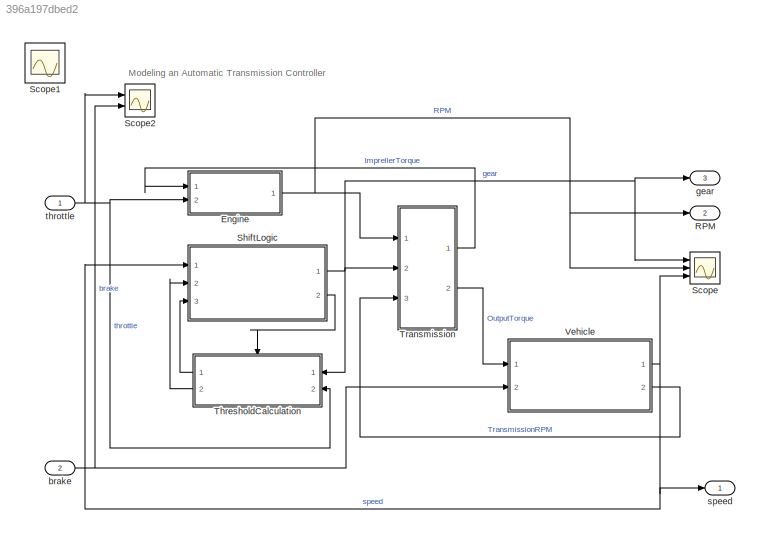
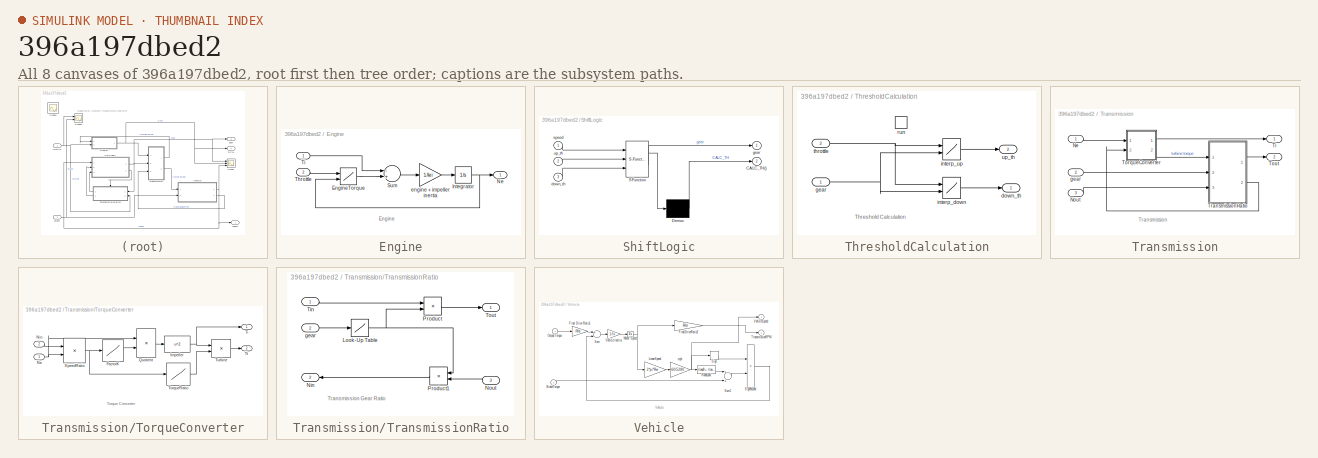
[diagram: thumbnail index - all 8 canvases of the model, root first then tree order]
MODEL slx_396a197dbed2
KIND model
CONFIG AbsTol = 1e-6
CONFIG EnableMultiTasking = off
CONFIG FixedStep = .01
CONFIG MaxStep = auto
CONFIG MinStep = auto
CONFIG RelTol = 1e-3
CONFIG SampleTimeConstraint = Unconstrained
CONFIG Solver = ode5
CONFIG SolverName = ode5
CONFIG StartTime = 0.0
CONFIG StopTime = tspan(end)
WORKSPACE source: MATLAB code (in-file)
WORKSPACE code: load sldemo_autotrans_data; %load initial conditions and other necessary data
BLOCK [SubSystem] Engine
  Ports = [2, 1]
  RequestExecContextInheritance = off
  Variant = off
BLOCK [Lookup2D] Engine/EngineTorque
  ColumnIndex = nevec
  RowIndex = thvec
  SaturateOnIntegerOverflow = off
  Table = emap
BLOCK [Integrator] Engine/Integrator
  InitialCondition = 1000
  LimitOutput = on
  LowerSaturationLimit = 600
  Ports = [1, 1]
  UpperSaturationLimit = 6000
  ZeroCross = off
BLOCK [Outport] Engine/Ne
  IconDisplay = Port number
  InitialOutput = 0
BLOCK [Sum] Engine/Sum
  Inputs = -+
  Ports = [2, 1]
BLOCK [Inport] Engine/Throttle
  IconDisplay = Port number
  Port = 2
BLOCK [Inport] Engine/Ti
  IconDisplay = Port number
BLOCK [Gain] Engine/engine + impeller inertia
  Gain = 1/Iei
BLOCK [Outport] RPM
  IconDisplay = Port number
  Port = 2
BLOCK [Scope] Scope
  NumInputPorts = 3
  Ports = [3]
  ScopeSpecificationString = C++SS(StrPVP('Location','[1120, 49, 1435, 898]'),StrPVP('Open','off'),StrPVP('TickLabels','on'),MxPVP('AxesTitles',53,'struct(''axes1'',''%<SignalLabel>'',''axes2'',''%<SignalLabel>'',''axes3'',''%<SignalLabel>'')'),StrPVP('YMin','-5~1000~0'),StrPVP('YMax','5~4500~120'),StrPVP('DataFormat','StructureWithTime'),StrPVP('LimitDataPoints','off'),StrPVP('BlockParamSampleTime','0'),StrPVP('Decimation','...<+42ch>
BLOCK [Scope] Scope1
  IOType = viewer
  NumInputPorts = 1
  Ports = []
  ScopeSpecificationString = C++SS(StrPVP('Location','[74, 539, 357, 735]'),StrPVP('Open','off'),MxPVP('AxesTitles',53,'struct(''axes1'',''%<SignalLabel>'')'),StrPVP('TimeRange','30'),StrPVP('YMin','1000'),StrPVP('YMax','5000'),StrPVP('MaxDataPoints','7500'),StrPVP('LimitDataPoints','on'),StrPVP('DataFormat','Array'),StrPVP('Decimation','1'),StrPVP('BlockParamSampleInput','off'))
BLOCK [Scope] Scope2
  NumInputPorts = 2
  Ports = [2]
  ScopeSpecificationString = C++SS(StrPVP('Location','[898, 979, 1378, 1469]'),StrPVP('Open','off'),StrPVP('TickLabels','on'),MxPVP('AxesTitles',53,'struct(''axes1'',''%<SignalLabel>'',''axes2'',''%<SignalLabel>'')'),MxPVP('ScopeGraphics',56,'struct(''FigureColor'',''[0.5 0.5 0.5]'',''AxesColor'',''[0 0 0]'',''AxesTickColor'',''[1 1 1]'',''LineColors'',''[1 1 0;1 0 1;0 1 1;1 0 0;0 1 0;0 0 1]'',''LineStyles'',''-|-|-|-|-|-'','...<+349ch>
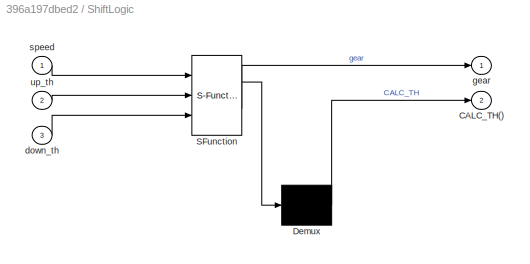
BLOCK [SubSystem] ShiftLogic
  ErrorFcn = Stateflow.Translate.translate
  PermitHierarchicalResolution = ExplicitOnly
  Ports = [3, 2]
  RequestExecContextInheritance = off
  SFBlockType = Chart
  TreatAsAtomicUnit = on
  Variant = off
BLOCK [Demux] ShiftLogic/ Demux 
  Outputs = 1
  Ports = [1, 1]
BLOCK [S-Function] ShiftLogic/ SFunction 
  EnableBusSupport = on
  FunctionName = sf_sfun
  Parameters = TWAIT
  PortCounts = [3 2]
  Ports = [3, 2]
  SFcnIsStateOwnerBlock = off
  SFunctionDeploymentMode = off
  Tag = Stateflow S-Function Autotrans_shift_breach 1
BLOCK [Outport] ShiftLogic/CALC_TH()
  IconDisplay = Port number
  Port = 2
BLOCK [Inport] ShiftLogic/down_th
  IconDisplay = Port number
  Port = 3
BLOCK [Outport] ShiftLogic/gear
  IconDisplay = Port number
BLOCK [Inport] ShiftLogic/speed
  IconDisplay = Port number
BLOCK [Inport] ShiftLogic/up_th
  IconDisplay = Port number
  Port = 2
BLOCK [SubSystem] ThresholdCalculation
  Ports = [2, 2, 0, 1]
  RequestExecContextInheritance = off
  TreatAsAtomicUnit = on
  Variant = off
BLOCK [Outport] ThresholdCalculation/down_th
  IconDisplay = Port number
BLOCK [Inport] ThresholdCalculation/gear
  IconDisplay = Port number
BLOCK [Lookup2D] ThresholdCalculation/interp_down
  ColumnIndex = [1:4]
  InputSameDT = off
  LockScale = on
  OutDataTypeStr = double
  RowIndex = downth
  SaturateOnIntegerOverflow = off
  Table = downtab
BLOCK [Lookup2D] ThresholdCalculation/interp_up
  ColumnIndex = [1:4]
  InputSameDT = off
  LockScale = on
  OutDataTypeStr = double
  RowIndex = upth
  SaturateOnIntegerOverflow = off
  Table = uptab
BLOCK [TriggerPort] ThresholdCalculation/run
  Ports = []
  TriggerType = function-call
  VariantControl = Variant
  ZeroCross = off
BLOCK [Inport] ThresholdCalculation/throttle
  IconDisplay = Port number
  Port = 2
BLOCK [Outport] ThresholdCalculation/up_th
  IconDisplay = Port number
  Port = 2
BLOCK [SubSystem] Transmission
  Ports = [3, 2]
  RequestExecContextInheritance = off
  Variant = off
BLOCK [Inport] Transmission/Ne
  IconDisplay = Port number
BLOCK [Inport] Transmission/Nout
  IconDisplay = Port number
  Port = 3
BLOCK [Outport] Transmission/Ti
  IconDisplay = Port number
  InitialOutput = 0
BLOCK [SubSystem] Transmission/TorqueConverter
  Ports = [2, 2]
  RequestExecContextInheritance = off
  ShowPortLabels = none
  Variant = off
BLOCK [Lookup] Transmission/TorqueConverter/FactorK
  InputValues = speedratio
  Table = Kfactor
BLOCK [Fcn] Transmission/TorqueConverter/Impeller
  Expr = u^2
BLOCK [Inport] Transmission/TorqueConverter/Ne
  IconDisplay = Port number
BLOCK [Inport] Transmission/TorqueConverter/Nin
  IconDisplay = Port number
  Port = 2
BLOCK [Product] Transmission/TorqueConverter/Quotient
  Inputs = */
  Ports = [2, 1]
  RndMeth = Floor
BLOCK [Product] Transmission/TorqueConverter/SpeedRatio
  Inputs = */
  Ports = [2, 1]
  RndMeth = Floor
BLOCK [Outport] Transmission/TorqueConverter/Ti
  IconDisplay = Port number
  InitialOutput = 0
BLOCK [Lookup] Transmission/TorqueConverter/TorqueRatio
  InputValues = speedratio
  Table = Torkratio
BLOCK [Outport] Transmission/TorqueConverter/Tt
  IconDisplay = Port number
  InitialOutput = 0
  Port = 2
BLOCK [Product] Transmission/TorqueConverter/Turbine
  Ports = [2, 1]
  RndMeth = Floor
BLOCK [Outport] Transmission/Tout
  IconDisplay = Port number
  InitialOutput = 0
  Port = 2
BLOCK [SubSystem] Transmission/TransmissionRatio
  Ports = [3, 2]
  RequestExecContextInheritance = off
  Variant = off
BLOCK [Lookup] Transmission/TransmissionRatio/Look-Up Table
  InputValues = [1 2 3 4]
  LockScale = on
  OutDataTypeStr = double
  Table = [2.393 1.450 1.000 0.677]
BLOCK [Outport] Transmission/TransmissionRatio/Nin
  IconDisplay = Port number
  InitialOutput = 0
  Port = 2
BLOCK [Inport] Transmission/TransmissionRatio/Nout
  IconDisplay = Port number
  Port = 3
BLOCK [Product] Transmission/TransmissionRatio/Product
  Ports = [2, 1]
  RndMeth = Floor
BLOCK [Product] Transmission/TransmissionRatio/Product1
  Ports = [2, 1]
  RndMeth = Floor
BLOCK [Inport] Transmission/TransmissionRatio/Tin
  IconDisplay = Port number
BLOCK [Outport] Transmission/TransmissionRatio/Tout
  IconDisplay = Port number
  InitialOutput = 0
BLOCK [Inport] Transmission/TransmissionRatio/gear
  IconDisplay = Port number
  Port = 2
BLOCK [Inport] Transmission/gear
  IconDisplay = Port number
  Port = 2
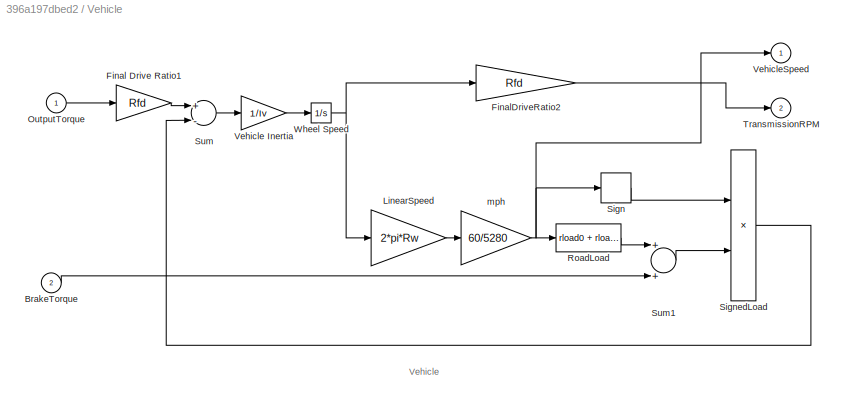
BLOCK [SubSystem] Vehicle
  Ports = [2, 2]
  RequestExecContextInheritance = off
  ShowPortLabels = none
  Variant = off
BLOCK [Inport] Vehicle/BrakeTorque
  IconDisplay = Port number
  Port = 2
BLOCK [Gain] Vehicle/Final Drive Ratio1
  Gain = Rfd
BLOCK [Gain] Vehicle/FinalDriveRatio2
  Gain = Rfd
BLOCK [Gain] Vehicle/LinearSpeed
  Gain = 2*pi*Rw
BLOCK [Inport] Vehicle/OutputTorque
  IconDisplay = Port number
BLOCK [Fcn] Vehicle/RoadLoad
  Expr = rload0 + rload2*u^2
BLOCK [Signum] Vehicle/Sign
BLOCK [Product] Vehicle/SignedLoad
  Ports = [2, 1]
  RndMeth = Floor
BLOCK [Sum] Vehicle/Sum
  Inputs = +-
  Ports = [2, 1]
BLOCK [Sum] Vehicle/Sum1
  Ports = [2, 1]
BLOCK [Outport] Vehicle/TransmissionRPM
  IconDisplay = Port number
  InitialOutput = 0
  Port = 2
BLOCK [Gain] Vehicle/Vehicle Inertia
  Gain = 1/Iv
BLOCK [Outport] Vehicle/VehicleSpeed
  IconDisplay = Port number
  InitialOutput = 0
BLOCK [Integrator] Vehicle/Wheel Speed
  InitialCondition = N20/Rfd
  Ports = [1, 1]
  ZeroCross = off
BLOCK [Gain] Vehicle/mph
  Gain = 60/5280
BLOCK [Inport] brake
  IconDisplay = Port number
  Interpolate = off
  Port = 2
BLOCK [Outport] gear
  IconDisplay = Port number
  Port = 3
BLOCK [Outport] speed
  IconDisplay = Port number
BLOCK [Inport] throttle
  IconDisplay = Port number
  Interpolate = off
ANNOTATION (root): Modeling an Automatic Transmission Controller
ANNOTATION Engine: Engine
ANNOTATION ThresholdCalculation: Threshold Calculation
ANNOTATION Transmission: Transmission
ANNOTATION Transmission/TorqueConverter: Torque Converter
ANNOTATION Transmission/TransmissionRatio: Transmission Gear Ratio
ANNOTATION Vehicle: Vehicle
LINE Engine/EngineTorque:1 -> Engine/Sum:2
NET Engine/Integrator:1 -> Engine/EngineTorque:2, Engine/Ne:1
LINE Engine/Sum:1 -> Engine/engine + impeller inertia:1
LINE Engine/Throttle:1 -> Engine/EngineTorque:1
LINE Engine/Ti:1 -> Engine/Sum:1
LINE Engine/engine + impeller inertia:1 -> Engine/Integrator:1
NET Engine:1 -> RPM:1, Scope:2, Transmission:1
NET ShiftLogic:1 -> Scope:1, ThresholdCalculation:1, Transmission:2, gear:1
LINE ShiftLogic:2 -> ThresholdCalculation:trigger
NET ThresholdCalculation/gear:1 -> ThresholdCalculation/interp_down:2, ThresholdCalculation/interp_up:2
LINE ThresholdCalculation/interp_down:1 -> ThresholdCalculation/down_th:1
LINE ThresholdCalculation/interp_up:1 -> ThresholdCalculation/up_th:1
NET ThresholdCalculation/throttle:1 -> ThresholdCalculation/interp_down:1, ThresholdCalculation/interp_up:1
LINE ThresholdCalculation:1 -> ShiftLogic:3
LINE ThresholdCalculation:2 -> ShiftLogic:2
LINE Transmission/Ne:1 -> Transmission/TorqueConverter:1
LINE Transmission/Nout:1 -> Transmission/TransmissionRatio:3
LINE Transmission/TorqueConverter/FactorK:1 -> Transmission/TorqueConverter/Quotient:2
NET Transmission/TorqueConverter/Impeller:1 -> Transmission/TorqueConverter/Ti:1, Transmission/TorqueConverter/Turbine:1
NET Transmission/TorqueConverter/Ne:1 -> Transmission/TorqueConverter/Quotient:1, Transmission/TorqueConverter/SpeedRatio:2
LINE Transmission/TorqueConverter/Nin:1 -> Transmission/TorqueConverter/SpeedRatio:1
LINE Transmission/TorqueConverter/Quotient:1 -> Transmission/TorqueConverter/Impeller:1
NET Transmission/TorqueConverter/SpeedRatio:1 -> Transmission/TorqueConverter/FactorK:1, Transmission/TorqueConverter/TorqueRatio:1
LINE Transmission/TorqueConverter/TorqueRatio:1 -> Transmission/TorqueConverter/Turbine:2
LINE Transmission/TorqueConverter/Turbine:1 -> Transmission/TorqueConverter/Tt:1
LINE Transmission/TorqueConverter:1 -> Transmission/Ti:1
LINE Transmission/TorqueConverter:2 -> Transmission/TransmissionRatio:1
NET Transmission/TransmissionRatio/Look-Up Table:1 -> Transmission/TransmissionRatio/Product1:1, Transmission/TransmissionRatio/Product:2
LINE Transmission/TransmissionRatio/Nout:1 -> Transmission/TransmissionRatio/Product1:2
LINE Transmission/TransmissionRatio/Product1:1 -> Transmission/TransmissionRatio/Nin:1
LINE Transmission/TransmissionRatio/Product:1 -> Transmission/TransmissionRatio/Tout:1
LINE Transmission/TransmissionRatio/Tin:1 -> Transmission/TransmissionRatio/Product:1
LINE Transmission/TransmissionRatio/gear:1 -> Transmission/TransmissionRatio/Look-Up Table:1
LINE Transmission/TransmissionRatio:1 -> Transmission/Tout:1
LINE Transmission/TransmissionRatio:2 -> Transmission/TorqueConverter:2
LINE Transmission/gear:1 -> Transmission/TransmissionRatio:2
LINE Transmission:1 -> Engine:1
LINE Transmission:2 -> Vehicle:1
LINE Vehicle/BrakeTorque:1 -> Vehicle/Sum1:2
LINE Vehicle/Final Drive Ratio1:1 -> Vehicle/Sum:1
LINE Vehicle/FinalDriveRatio2:1 -> Vehicle/TransmissionRPM:1
LINE Vehicle/LinearSpeed:1 -> Vehicle/mph:1
LINE Vehicle/OutputTorque:1 -> Vehicle/Final Drive Ratio1:1
LINE Vehicle/RoadLoad:1 -> Vehicle/Sum1:1
LINE Vehicle/Sign:1 -> Vehicle/SignedLoad:1
LINE Vehicle/SignedLoad:1 -> Vehicle/Sum:2
LINE Vehicle/Sum1:1 -> Vehicle/SignedLoad:2
LINE Vehicle/Sum:1 -> Vehicle/Vehicle Inertia:1
LINE Vehicle/Vehicle Inertia:1 -> Vehicle/Wheel Speed:1
NET Vehicle/Wheel Speed:1 -> Vehicle/FinalDriveRatio2:1, Vehicle/LinearSpeed:1
NET Vehicle/mph:1 -> Vehicle/RoadLoad:1, Vehicle/Sign:1, Vehicle/VehicleSpeed:1
NET Vehicle:1 -> Scope:3, ShiftLogic:1, speed:1
LINE Vehicle:2 -> Transmission:3
NET brake:1 -> Scope2:2, Vehicle:2
NET throttle:1 -> Engine:2, Scope2:1, ThresholdCalculation:2
note: NET lines group one-source signal fan-out (src -> all destinations, sorted); 1:1 wires keep LINE
CHART ShiftLogic states=9 transitions=14
  STATE_LABEL 'gear_state'
  STATE_LABEL 'fourth\nentry:\ngear = 4;'
  STATE_LABEL 'third\nentry:\ngear = 3;'
  STATE_LABEL 'second\nentry:\ngear = 2;'
  STATE_LABEL 'first\nentry:\ngear = 1;'
  STATE_LABEL 'UP'
  STATE_LABEL 'UP'
  STATE_LABEL 'UP'
  STATE_LABEL 'DOWN'
  STATE_LABEL 'DOWN'
  STATE_LABEL 'DOWN'
  STATE_LABEL 'fourth\nentry:\ngear = 4;'
  STATE_LABEL 'third\nentry:\ngear = 3;'
  STATE_LABEL 'second\nentry:\ngear = 2;'
  STATE_LABEL 'first\nentry:\ngear = 1;'
  STATE_LABEL 'selection_state\nduring: CALC_TH;'
  STATE_LABEL 'steady_state'
  STATE_LABEL 'upshifting'
  STATE_LABEL 'downshifting'
  STATE_LABEL '[speed > up_th]'
  STATE_LABEL '[speed < down_th]'
  STATE_LABEL 'after(TWAIT,tick)\n[speed <= down_th]\n{gear_state.DOWN}'
  STATE_LABEL '[speed > down_th]'
  STATE_LABEL 'after(TWAIT,tick)\n[speed >= up_th]\n{gear_state.UP}'
  STATE_LABEL '[speed < up_th]'
  STATE_LABEL 'steady_state'
  STATE_LABEL 'upshifting'
  STATE_LABEL 'downshifting'
